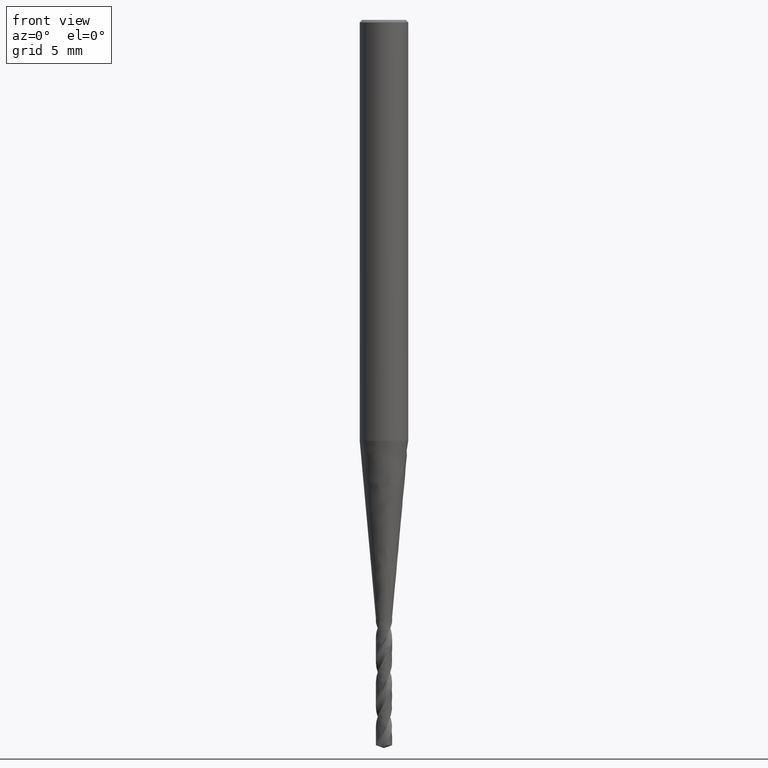
[diagram: clean part render]
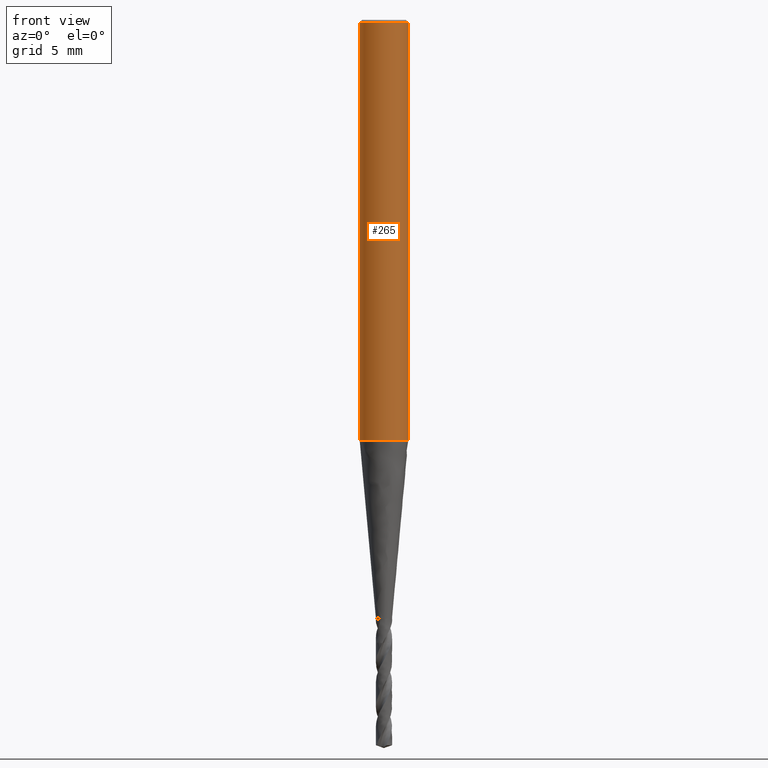
[diagram: same view with one face highlighted and labeled with its STEP entity id]
A machine part, front view. The second image highlights one B-rep face of the part: STEP entity #265.
In plain terms, the highlighted face is a freeform B-spline surface patch.
Its self-contained STEP definition (entity closure, byte-faithful):
#99 = VERTEX_POINT('', #100);
#100 = CARTESIAN_POINT('', (-1.5, 1.6841955105274E-15, -26.005));
#106 = EDGE_CURVE('', #99, #99, #107, .T.);
#107 = CIRCLE('', #108, 1.5);
#108 = AXIS2_PLACEMENT_3D('', #109, #110, #111);
#109 = CARTESIAN_POINT('', (9.7503132870304E-32, 1.59234700059135E-15, -26.005));
#110 = DIRECTION('', (3.74939945665464E-33, 6.12323399573677E-17, -1.));
#111 = DIRECTION('', (-1., 6.12323399573677E-17, 0.));
#214 = VERTEX_POINT('', #215);
#215 = CARTESIAN_POINT('', (-1.5, 1.01033360929656E-16, -0.149999999999999));
#231 = EDGE_CURVE('', #214, #214, #232, .T.);
#232 = CIRCLE('', #233, 1.5);
#233 = AXIS2_PLACEMENT_3D('', #234, #235, #236);
#234 = CARTESIAN_POINT('', (5.62409918498176E-34, 9.18485099360482E-18, -0.149999999999999));
#235 = DIRECTION('', (3.74939945665464E-33, 6.12323399573677E-17, -1.));
#236 = DIRECTION('', (-1., 6.12323399573677E-17, 0.));
#265 = ADVANCED_FACE('', (#266), #277, .T.);
#266 = FACE_OUTER_BOUND('', #267, .T.);
#267 = EDGE_LOOP('', (#268, #274, #275, #276));
#268 = ORIENTED_EDGE('', *, *, #269, .T.);
#269 = EDGE_CURVE('', #99, #214, #270, .T.);
#270 = LINE('', #271, #272);
#271 = CARTESIAN_POINT('', (-1.5, 1.6841955105274E-15, -26.005));
#272 = VECTOR('', #273, 25.855);
#273 = DIRECTION('', (0., -1.58316214959774E-15, 25.855));
#274 = ORIENTED_EDGE('', *, *, #231, .T.);
#275 = ORIENTED_EDGE('', *, *, #269, .F.);
#276 = ORIENTED_EDGE('', *, *, #106, .F.);
#277 = (
   BOUNDED_SURFACE ()
   B_SPLINE_SURFACE (1, 2, ((#278, #279, #280, #281, #282, #283, #284, #285, #286), (#287, #288, #289, #290, #291, #292, #293, #294, #295)), .UNSPECIFIED., .F., .T., .U.)
   B_SPLINE_SURFACE_WITH_KNOTS ((2, 2), (3, 2, 2, 2, 3), (0., 1.), (0., 2.35619449019235, 4.71238898038469, 7.06858347057704, 9.42477796076938), .UNSPECIFIED.)
   GEOMETRIC_REPRESENTATION_ITEM ()
   RATIONAL_B_SPLINE_SURFACE (((1., 0.707106781186548, 1., 0.707106781186548, 1., 0.707106781186548, 1., 0.707106781186548, 1.), (1., 0.707106781186548, 1., 0.707106781186548, 1., 0.707106781186548, 1., 0.707106781186548, 1.)))
   REPRESENTATION_ITEM ('')
   SURFACE ()
);
#278 = CARTESIAN_POINT('', (-1.5, 1.6841955105274E-15, -26.005));
#279 = CARTESIAN_POINT('', (-1.5, 1.5, -26.005));
#280 = CARTESIAN_POINT('', (9.86076131526265E-32, 1.5, -26.005));
#281 = CARTESIAN_POINT('', (1.5, 1.5, -26.005));
#282 = CARTESIAN_POINT('', (1.5, 1.6841955105274E-15, -26.005));
#283 = CARTESIAN_POINT('', (1.5, -1.5, -26.005));
#284 = CARTESIAN_POINT('', (1.83697019872103E-16, -1.5, -26.005));
#285 = CARTESIAN_POINT('', (-1.5, -1.5, -26.005));
#286 = CARTESIAN_POINT('', (-1.5, 1.6841955105274E-15, -26.005));
#287 = CARTESIAN_POINT('', (-1.5, 1.01033360929656E-16, -0.149999999999999));
#288 = CARTESIAN_POINT('', (-1.5, 1.5, -0.149999999999999));
#289 = CARTESIAN_POINT('', (0., 1.5, -0.149999999999999));
#290 = CARTESIAN_POINT('', (1.5, 1.5, -0.149999999999999));
#291 = CARTESIAN_POINT('', (1.5, 1.01033360929657E-16, -0.149999999999999));
#292 = CARTESIAN_POINT('', (1.5, -1.5, -0.149999999999999));
#293 = CARTESIAN_POINT('', (1.83697019872103E-16, -1.5, -0.149999999999999));
#294 = CARTESIAN_POINT('', (-1.5, -1.5, -0.149999999999999));
#295 = CARTESIAN_POINT('', (-1.5, 1.01033360929656E-16, -0.149999999999999));